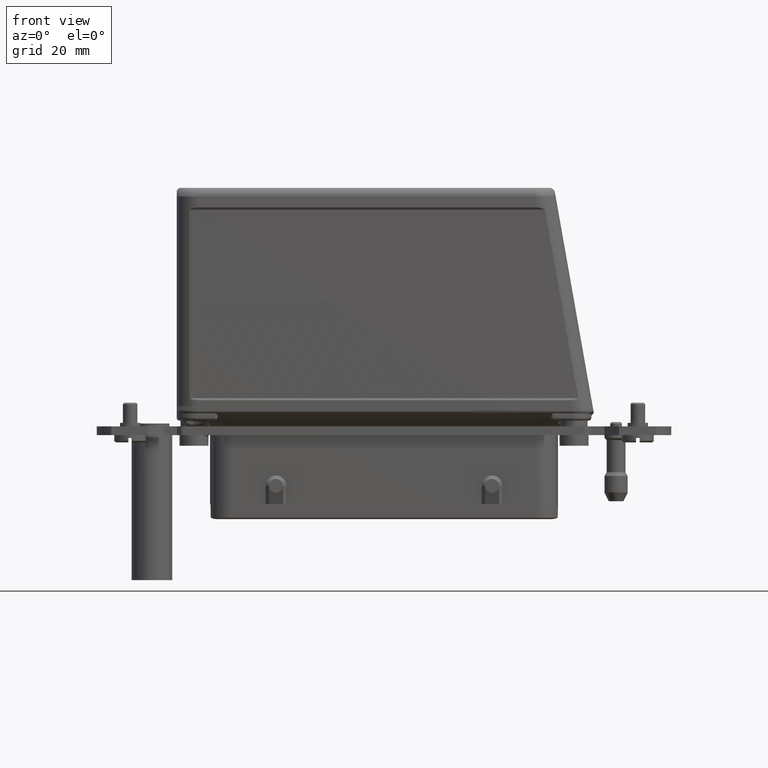
[diagram: clean part render]
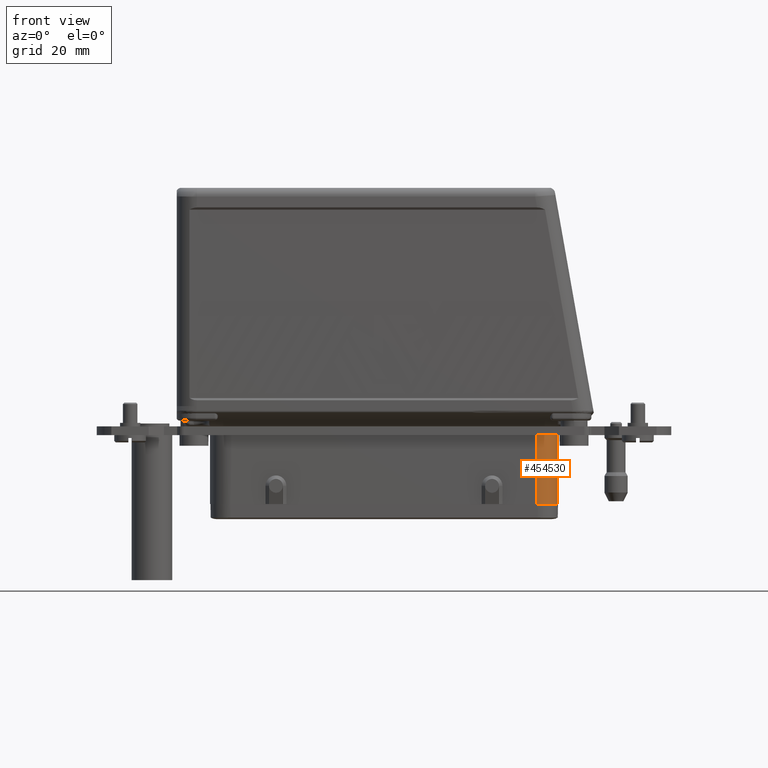
[diagram: same view with one face highlighted and labeled with its STEP entity id]
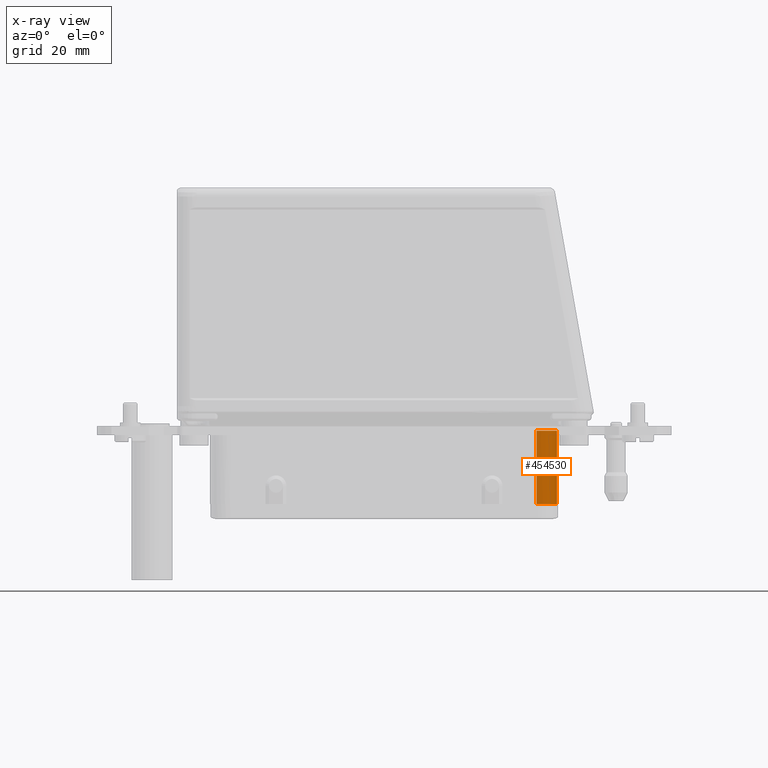
[diagram: x-ray of the same camera — body ghosted, the highlighted face saturated]
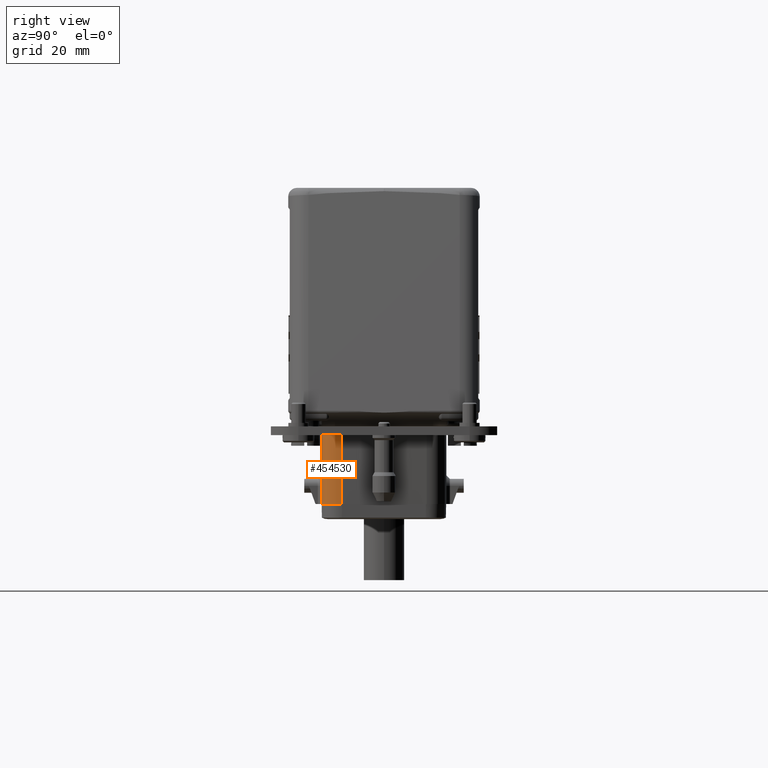
[diagram: same view with one face highlighted and labeled with its STEP entity id]
A machine part, front view. The second image highlights one B-rep face of the part: STEP entity #454530.
The next image is the same camera in x-ray: the body ghosted, the highlighted face saturated — about 0% of this face is hidden behind the body in this view.
A second angle (right view) of the same face is appended — the face is thin or edge-on in the first view.
In plain terms, the highlighted cylindrical surface (edge-blend (fillet) strip) has radius 7 mm, axis along (0, 0, -1).
Its self-contained STEP definition (entity closure, byte-faithful):
#211130=CARTESIAN_POINT('',(31.9417440336284,45.0366080000316,
55.6520570277609));
#211140=VERTEX_POINT('',#211130);
#211170=CARTESIAN_POINT('',(32.1249826717835,45.0366080000316,
48.654455752932));
#211180=DIRECTION('',(2.40356057059527E-31,-1.,-1.62312834311911E-32));
#211190=DIRECTION('',(-1.,-2.40356057059527E-31,0.));
#211200=AXIS2_PLACEMENT_3D('',#211170,#211180,#211190);
#211210=CIRCLE('',#211200,7.);
#211220=CARTESIAN_POINT('',(25.1249826717835,45.036608000024,
48.654455752932));
#211230=VERTEX_POINT('',#211220);
#211240=EDGE_CURVE('',#211140,#211230,#211210,.T.);
#279470=CARTESIAN_POINT('',(25.1249826717835,20.0000000000298,
48.654455752932));
#279480=DIRECTION('',(2.40356057059527E-31,-1.,-1.62312834311911E-32));
#279490=VECTOR('',#279480,1.);
#279500=LINE('',#279470,#279490);
#279510=CARTESIAN_POINT('',(25.1249826717835,19.7826389097111,
48.654455752932));
#279520=VERTEX_POINT('',#279510);
#279530=EDGE_CURVE('',#211230,#279520,#279500,.T.);
#452460=CARTESIAN_POINT('',(32.1249826717835,18.5483500447515,
48.654455752932));
#452470=DIRECTION('',(0.173648177666952,0.984807753012204,
2.20070172139E-14));
#452480=DIRECTION('',(-0.984807753012204,0.173648177666952,
-1.2480799662919E-13));
#452490=AXIS2_PLACEMENT_3D('',#452460,#452470,#452480);
#452500=ELLIPSE('',#452490,7.10798628320024,7.);
#452510=CARTESIAN_POINT('',(25.1356695508665,19.780754524589,
49.0411107642503));
#452520=VERTEX_POINT('',#452510);
#452530=EDGE_CURVE('',#279520,#452520,#452500,.T.);
#452550=CARTESIAN_POINT('',(25.1356695508728,19.780754524589,0.));
#452560=DIRECTION('',(-1.27080627009798E-13,6.12323399573695E-17,1.));
#452570=VECTOR('',#452560,1.);
#452580=LINE('',#452550,#452570);
#453970=CARTESIAN_POINT('',(32.1249826717835,20.0000000000298,
48.654455752932));
#453980=DIRECTION('',(2.40356057059527E-31,-1.,-1.62312834311911E-32));
#453990=DIRECTION('',(-1.,-2.40356057059527E-31,0.));
#454000=AXIS2_PLACEMENT_3D('',#453970,#453980,#453990);
#454010=CYLINDRICAL_SURFACE('',#454000,7.);
#454020=CARTESIAN_POINT('',(31.9417440336284,20.0000000000298,
55.6520570277609));
#454030=DIRECTION('',(2.40356057059527E-31,-1.,-1.62312834311911E-32));
#454040=VECTOR('',#454030,1.);
#454050=LINE('',#454020,#454040);
#454060=CARTESIAN_POINT('',(31.9417440336284,19.7813171797386,
55.6520570277609));
#454070=VERTEX_POINT('',#454060);
#454080=EDGE_CURVE('',#211140,#454070,#454050,.T.);
#454090=ORIENTED_EDGE('',*,*,#454080,.F.);
#454100=CARTESIAN_POINT('',(32.1249826717835,19.7813171797386,
48.654455752932));
#454110=DIRECTION('',(2.40356057059527E-31,-1.,-1.62312834311911E-32));
#454120=DIRECTION('',(-1.,-2.40356057059527E-31,0.));
#454130=AXIS2_PLACEMENT_3D('',#454100,#454110,#454120);
#454140=CIRCLE('',#454130,7.);
#454150=CARTESIAN_POINT('',(25.1366021825903,19.7813171797391,
49.0576159422644));
#454160=VERTEX_POINT('',#454150);
#454170=EDGE_CURVE('',#454070,#454160,#454140,.T.);
#454180=ORIENTED_EDGE('',*,*,#454170,.F.);
#454190=CARTESIAN_POINT('',(25.1366021825903,19.7813171797391,
49.0576159422644));
#454200=CARTESIAN_POINT('',(25.1366030735941,19.781270291684,
49.0576313869273));
#454210=CARTESIAN_POINT('',(25.1366039646544,19.7812234036609,
49.0576468316811));
#454220=CARTESIAN_POINT('',(25.1366048557712,19.7811765156687,
49.0576622765224));
#454230=CARTESIAN_POINT('',(25.1366057468879,19.7811296276765,
49.0576777213636));
#454240=CARTESIAN_POINT('',(25.1366066380613,19.7810827397162,
49.0576931662952));
#454250=CARTESIAN_POINT('',(25.1366075292911,19.7810358517869,
49.0577086113148));
#454260=CARTESIAN_POINT('',(25.1366084205209,19.7809889638576,
49.0577240563344));
#454270=CARTESIAN_POINT('',(25.1366093118073,19.78094207596,
49.0577395014439));
#454280=CARTESIAN_POINT('',(25.1366102031501,19.7808951880936,
49.0577549466419));
#454290=CARTESIAN_POINT('',(25.136611094493,19.7808483002272,
49.0577703918398));
#454300=CARTESIAN_POINT('',(25.1366119858924,19.7808014123924,
49.0577858371273));
#454310=CARTESIAN_POINT('',(25.1366128773483,19.780754524589,
49.0578012825037));
#454320=B_SPLINE_CURVE_WITH_KNOTS('',3,(#454190,#454200,#454210,#454220,
#454230,#454240,#454250,#454260,#454270,#454280,#454290,#454300,#454310)
,.UNSPECIFIED.,.F.,.F.,(4,3,3,3,4),(0.,0.000148122822206038,
0.000296244760080941,0.000444365813073262,0.000592487632787458),
.UNSPECIFIED.);
#454330=CARTESIAN_POINT('',(25.1366128773483,19.780754524589,
49.0578012825037));
#454340=VERTEX_POINT('',#454330);
#454350=EDGE_CURVE('',#454160,#454340,#454320,.T.);
#454360=ORIENTED_EDGE('',*,*,#454350,.F.);
#454370=CARTESIAN_POINT('',(32.1249826717835,19.780754524589,
48.654455752932));
#454380=DIRECTION('',(2.40356057059527E-31,-1.,-1.62312834311911E-32));
#454390=DIRECTION('',(-1.,-2.40356057059527E-31,0.));
#454400=AXIS2_PLACEMENT_3D('',#454370,#454380,#454390);
#454410=CIRCLE('',#454400,7.);
#454420=CARTESIAN_POINT('',(25.1356695508729,19.7807545245873,
49.0411193498666));
#454430=VERTEX_POINT('',#454420);
#454440=EDGE_CURVE('',#454340,#454430,#454410,.T.);
#454450=ORIENTED_EDGE('',*,*,#454440,.F.);
#454460=EDGE_CURVE('',#452520,#454430,#452580,.T.);
#454470=ORIENTED_EDGE('',*,*,#454460,.T.);
#454480=ORIENTED_EDGE('',*,*,#452530,.T.);
#454490=ORIENTED_EDGE('',*,*,#279530,.T.);
#454500=ORIENTED_EDGE('',*,*,#211240,.T.);
#454510=EDGE_LOOP('',(#454500,#454490,#454480,#454470,#454450,#454360,
#454180,#454090));
#454520=FACE_OUTER_BOUND('',#454510,.T.);
#454530=ADVANCED_FACE('',(#454520),#454010,.T.);